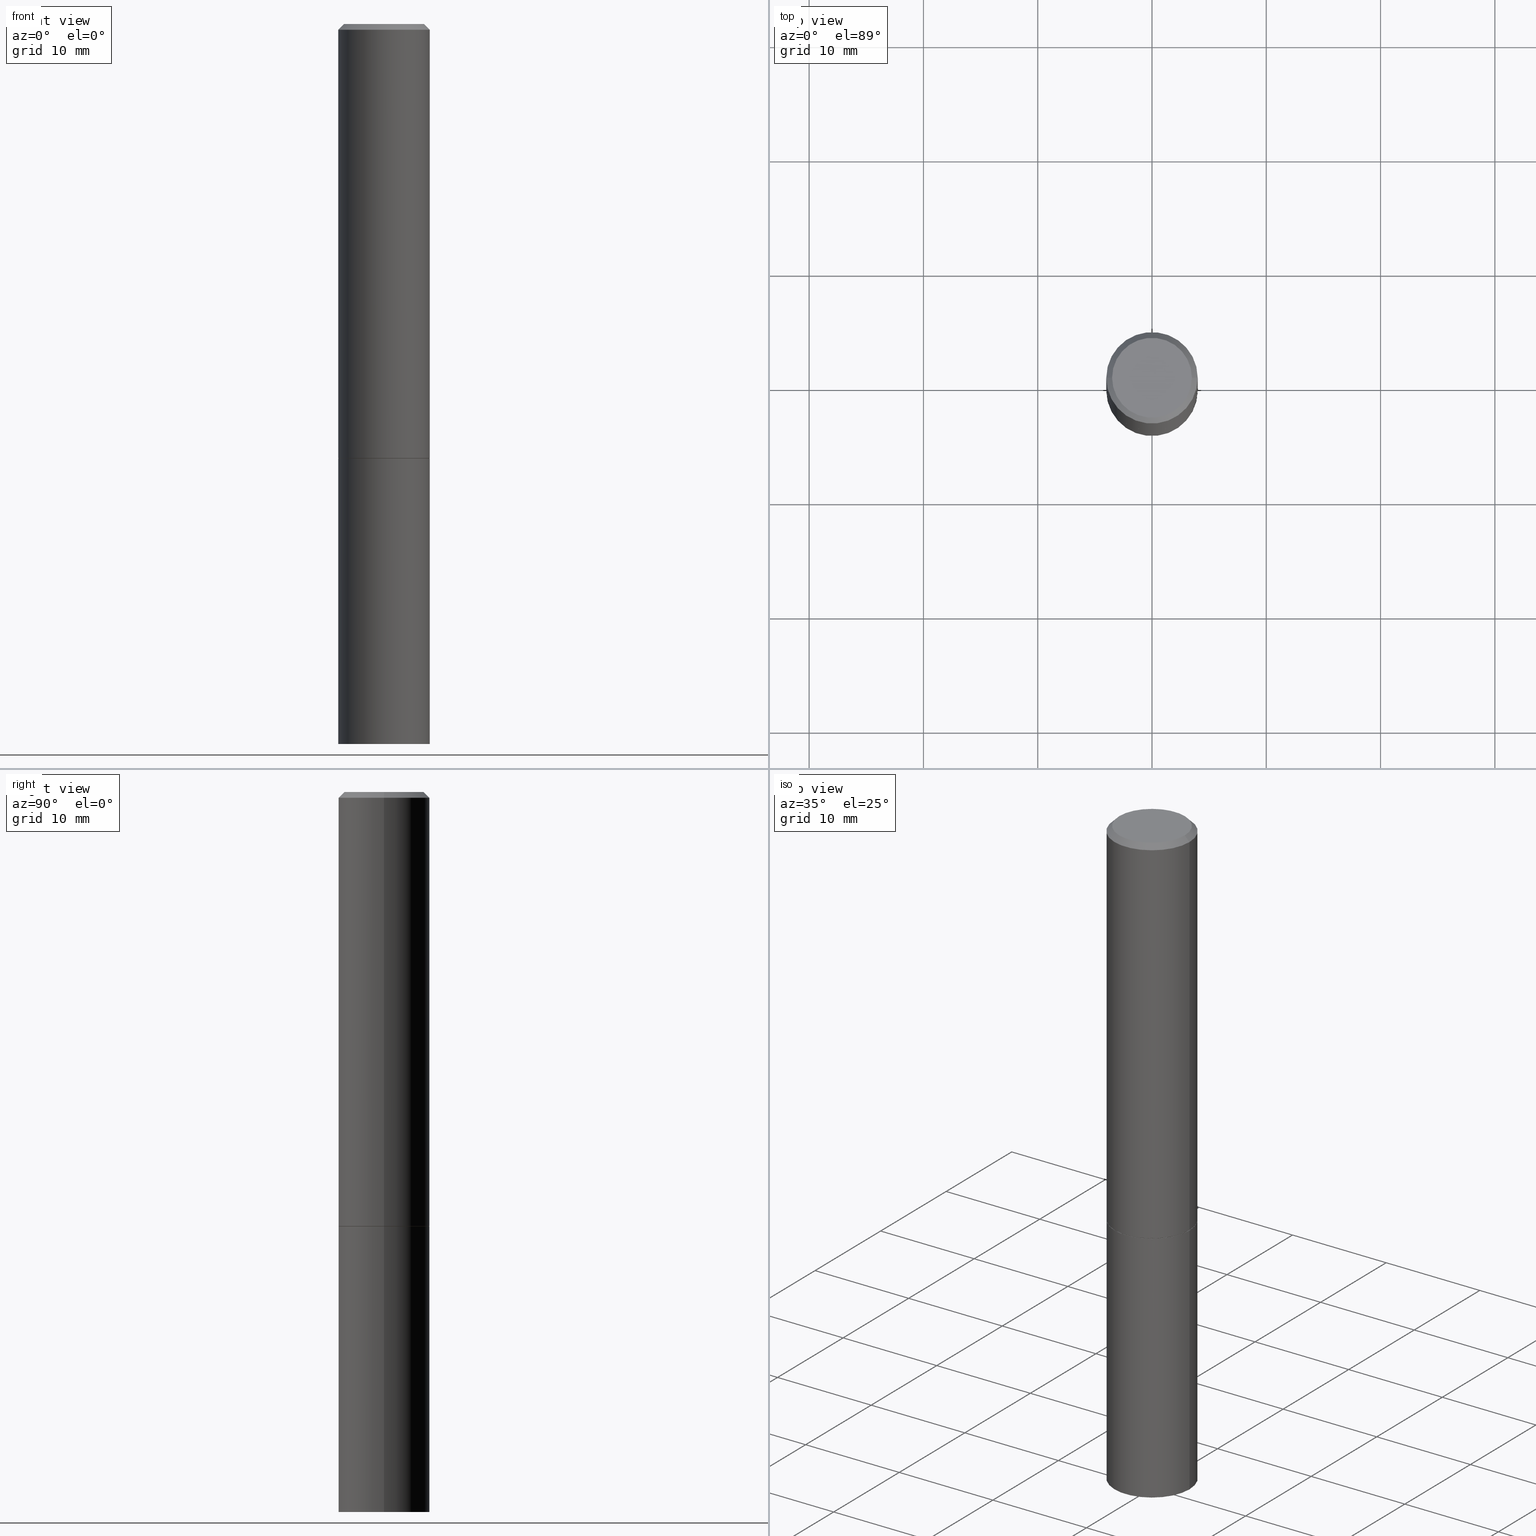
[diagram: canonical four-view strip — front | top / right | iso, engineering-drawing reading convention]
A machine part, canonical four-view strip (front | top / right | iso — engineering-drawing reading convention). The complete STEP part file that produces these views, byte-faithful:
ISO-10303-21;
HEADER;
FILE_DESCRIPTION (( 'STEP AP203' ),
    '1' );
FILE_NAME ('91121.STEP',
    '2024-03-01T03:58:50',
    ( '' ),
    ( '' ),
    'SwSTEP 2.0',
    'SolidWorks 2023',
    '' );
FILE_SCHEMA (( 'CONFIG_CONTROL_DESIGN' ));
ENDSEC;

DATA;
#1 = CARTESIAN_POINT ( 'NONE',  ( 3.658421334052964725E-29, -5.223256082909346148E-15, -1.495999999999999996 ) ) ;
#2 = VERTEX_POINT ( 'NONE', #57 ) ;
#3 = DIRECTION ( 'NONE',  ( 1.000000000000000000, -6.982962677686265922E-15, 4.876176775795935232E-29 ) ) ;
#4 = ORIENTED_EDGE ( 'NONE', *, *, #106, .F. ) ;
#5 = DATE_TIME_ROLE ( 'classification_date' ) ;
#6 = EDGE_CURVE ( 'NONE', #230, #224, #355, .T. ) ;
#7 = VERTEX_POINT ( 'NONE', #11 ) ;
#8 = APPLICATION_CONTEXT ( 'configuration controlled 3d designs of mechanical parts and assemblies' ) ;
#9 = PERSON_AND_ORGANIZATION ( #47, #123 ) ;
#10 = CARTESIAN_POINT ( 'NONE',  ( 3.658421334052964725E-29, -5.223256082909346148E-15, -1.495999999999999996 ) ) ;
#11 = CARTESIAN_POINT ( 'NONE',  ( 0.1574999999999999456, -6.319581223306091410E-15, -1.495000000000000329 ) ) ;
#12 = APPROVAL_ROLE ( '' ) ;
#13 = CC_DESIGN_PERSON_AND_ORGANIZATION_ASSIGNMENT ( #150, #299, ( #117 ) ) ;
#14 = DIRECTION ( 'NONE',  ( 1.000000000000000000, -6.982962677686265922E-15, 4.876176775795935232E-29 ) ) ;
#15 = AXIS2_PLACEMENT_3D ( 'NONE', #153, #69, #189 ) ;
#16 = VECTOR ( 'NONE', #144, 39.37007874015748143 ) ;
#17 = FACE_OUTER_BOUND ( 'NONE', #26, .T. ) ;
#18 = AXIS2_PLACEMENT_3D ( 'NONE', #125, #301, #14 ) ;
#19 = ADVANCED_BREP_SHAPE_REPRESENTATION ( '91121', ( #271, #157, #63 ), #320 ) ;
#20 = EDGE_LOOP ( 'NONE', ( #346, #289, #170, #86 ) ) ;
#21 = CC_DESIGN_DATE_AND_TIME_ASSIGNMENT ( #65, #182, ( #309 ) ) ;
#22 = APPLICATION_CONTEXT ( 'configuration controlled 3d designs of mechanical parts and assemblies' ) ;
#23 = CARTESIAN_POINT ( 'NONE',  ( 4.890937612370281041E-31, -6.982962677686302702E-17, -0.02000000000000003511 ) ) ;
#24 = CARTESIAN_POINT ( 'NONE',  ( 4.890937612370281041E-31, -6.982962677686302702E-17, -0.02000000000000003511 ) ) ;
#25 = CIRCLE ( 'NONE', #334, 0.1565000000000000002 ) ;
#26 = EDGE_LOOP ( 'NONE', ( #250, #336, #200, #149 ) ) ;
#27 = LINE ( 'NONE', #281, #16 ) ;
#28 = ORIENTED_EDGE ( 'NONE', *, *, #162, .F. ) ;
#29 = CARTESIAN_POINT ( 'NONE',  ( -0.1575000000000000011, -5.822483814998842744E-15, -1.496000000000000441 ) ) ;
#30 = EDGE_LOOP ( 'NONE', ( #4, #52, #175, #177 ) ) ;
#31 = CARTESIAN_POINT ( 'NONE',  ( -0.1565000000000000002, -4.105958247096567151E-15, -1.495999999999999996 ) ) ;
#32 = ADVANCED_FACE ( 'NONE', ( #96 ), #227, .T. ) ;
#33 = CIRCLE ( 'NONE', #54, 0.1574999999999997791 ) ;
#34 = ORIENTED_EDGE ( 'NONE', *, *, #340, .F. ) ;
#35 = APPROVAL_DATE_TIME ( #41, #270 ) ;
#36 = ORIENTED_EDGE ( 'NONE', *, *, #298, .F. ) ;
#37 = APPROVAL_ROLE ( '' ) ;
#38 = LINE ( 'NONE', #352, #362 ) ;
#39 = AXIS2_PLACEMENT_3D ( 'NONE', #141, #50, #168 ) ;
#40 = ADVANCED_FACE ( 'NONE', ( #187 ), #327, .T. ) ;
#41 = DATE_AND_TIME ( #288, #306 ) ;
#42 = DIRECTION ( 'NONE',  ( -2.445468806185136597E-29, 3.491481338843145583E-15, 1.000000000000000000 ) ) ;
#43 = APPROVAL_STATUS ( 'not_yet_approved' ) ;
#44 = VECTOR ( 'NONE', #237, 39.37007874015748143 ) ;
#45 = DIRECTION ( 'NONE',  ( 1.000000000000000000, -6.982962677686268288E-15, 0.000000000000000000 ) ) ;
#46 = EDGE_CURVE ( 'NONE', #314, #2, #48, .T. ) ;
#47 = PERSON ( 'UNSPECIFIED', 'UNSPECIFIED', 'UNSPECIFIED', ('UNSPECIFIED'), ('UNSPECIFIED'), ('UNSPECIFIED') ) ;
#48 = CIRCLE ( 'NONE', #62, 0.1565000000000000002 ) ;
#49 = CONICAL_SURFACE ( 'NONE', #356, 0.1565000000000000002, 0.7853981633975336552 ) ;
#50 = DIRECTION ( 'NONE',  ( -2.445468806185136597E-29, 3.491481338843145583E-15, 1.000000000000000000 ) ) ;
#51 = CARTESIAN_POINT ( 'NONE',  ( 0.1575000000000000011, -6.323072704644934417E-15, -1.496000000000000441 ) ) ;
#52 = ORIENTED_EDGE ( 'NONE', *, *, #102, .T. ) ;
#53 = DIRECTION ( 'NONE',  ( 1.000000000000000000, -6.982962677686266711E-15, 0.000000000000000000 ) ) ;
#54 = AXIS2_PLACEMENT_3D ( 'NONE', #24, #56, #197 ) ;
#55 = EDGE_LOOP ( 'NONE', ( #319, #253, #34, #36 ) ) ;
#56 = DIRECTION ( 'NONE',  ( -2.445468806185136597E-29, 3.491481338843145583E-15, 1.000000000000000000 ) ) ;
#57 = CARTESIAN_POINT ( 'NONE',  ( 0.1565000000000000002, -6.316089741967246825E-15, -1.495999999999999996 ) ) ;
#58 = ADVANCED_FACE ( 'NONE', ( #238 ), #263, .T. ) ;
#59 = CARTESIAN_POINT ( 'NONE',  ( 0.000000000000000000, 0.000000000000000000, 0.000000000000000000 ) ) ;
#60 = ORIENTED_EDGE ( 'NONE', *, *, #46, .F. ) ;
#61 = CC_DESIGN_PERSON_AND_ORGANIZATION_ASSIGNMENT ( #322, #66, ( #70 ) ) ;
#62 = AXIS2_PLACEMENT_3D ( 'NONE', #129, #42, #190 ) ;
#63 = AXIS2_PLACEMENT_3D ( 'NONE', #119, #152, #231 ) ;
#64 = ORIENTED_EDGE ( 'NONE', *, *, #106, .T. ) ;
#65 = DATE_AND_TIME ( #295, #294 ) ;
#66 = PERSON_AND_ORGANIZATION_ROLE ( 'classification_officer' ) ;
#67 = DIRECTION ( 'NONE',  ( -2.445468806185136597E-29, 3.491481338843145583E-15, 1.000000000000000000 ) ) ;
#68 = PERSON_AND_ORGANIZATION_ROLE ( 'design_owner' ) ;
#69 = DIRECTION ( 'NONE',  ( -2.445468806185136597E-29, 3.491481338843145583E-15, 1.000000000000000000 ) ) ;
#70 = SECURITY_CLASSIFICATION ( '', '', #326 ) ;
#71 = CALENDAR_DATE ( 2024, 29, 2 ) ;
#72 = ADVANCED_FACE ( 'NONE', ( #212 ), #323, .F. ) ;
#73 = CYLINDRICAL_SURFACE ( 'NONE', #130, 0.1574999999999998901 ) ;
#74 = CC_DESIGN_APPROVAL ( #270, ( #117 ) ) ;
#75 = DIRECTION ( 'NONE',  ( 1.000000000000000000, -6.982962677686266711E-15, 4.876176775795935793E-29 ) ) ;
#76 = LINE ( 'NONE', #243, #274 ) ;
#77 = EDGE_CURVE ( 'NONE', #224, #272, #184, .T. ) ;
#78 = CC_DESIGN_PERSON_AND_ORGANIZATION_ASSIGNMENT ( #239, #211, ( #117 ) ) ;
#79 = DIRECTION ( 'NONE',  ( -2.445468806185136877E-29, 3.491481338843145188E-15, 1.000000000000000000 ) ) ;
#80 = CARTESIAN_POINT ( 'NONE',  ( -0.1574999999999999456, -1.525692305351525222E-15, -1.495000000000000329 ) ) ;
#81 = EDGE_LOOP ( 'NONE', ( #83, #60 ) ) ;
#82 = CARTESIAN_POINT ( 'NONE',  ( 3.658421334052965286E-29, -5.223256082909346937E-15, -1.496000000000000441 ) ) ;
#83 = ORIENTED_EDGE ( 'NONE', *, *, #255, .F. ) ;
#84 = DIRECTION ( 'NONE',  ( 0.7071067811866078578, -2.468850131082888544E-15, 0.7071067811864871766 ) ) ;
#85 = VECTOR ( 'NONE', #79, 39.37007874015748143 ) ;
#86 = ORIENTED_EDGE ( 'NONE', *, *, #102, .F. ) ;
#87 = DIRECTION ( 'NONE',  ( 1.000000000000000000, -6.982962677686267499E-15, 0.000000000000000000 ) ) ;
#88 = ORIENTED_EDGE ( 'NONE', *, *, #162, .T. ) ;
#89 = APPROVAL_STATUS ( 'not_yet_approved' ) ;
#90 = ORIENTED_EDGE ( 'NONE', *, *, #273, .T. ) ;
#91 = AXIS2_PLACEMENT_3D ( 'NONE', #23, #312, #53 ) ;
#92 = DATE_AND_TIME ( #264, #186 ) ;
#93 = CARTESIAN_POINT ( 'NONE',  ( 4.890937612370281041E-31, -6.982962677686302702E-17, -0.02000000000000003511 ) ) ;
#94 = PERSON_AND_ORGANIZATION_ROLE ( 'creator' ) ;
#95 = CC_DESIGN_PERSON_AND_ORGANIZATION_ASSIGNMENT ( #236, #68, ( #252 ) ) ;
#96 = FACE_OUTER_BOUND ( 'NONE', #20, .T. ) ;
#97 = APPROVAL_ROLE ( '' ) ;
#98 = CIRCLE ( 'NONE', #108, 0.1374999999999997891 ) ;
#99 = EDGE_CURVE ( 'NONE', #145, #260, #38, .T. ) ;
#100 = DIRECTION ( 'NONE',  ( -2.445468806185136597E-29, 3.491481338843145583E-15, 1.000000000000000000 ) ) ;
#101 = CC_DESIGN_SECURITY_CLASSIFICATION ( #70, ( #117 ) ) ;
#102 = EDGE_CURVE ( 'NONE', #342, #7, #137, .T. ) ;
#103 = DIRECTION ( 'NONE',  ( 2.438088387897960049E-29, -3.491481338843145188E-15, -1.000000000000000000 ) ) ;
#104 = DIRECTION ( 'NONE',  ( -1.000000000000000000, 6.982962677686265922E-15, -4.876176775795935793E-29 ) ) ;
#105 = DIRECTION ( 'NONE',  ( 1.000000000000000000, -6.982962677686267499E-15, 0.000000000000000000 ) ) ;
#106 = EDGE_CURVE ( 'NONE', #342, #344, #128, .T. ) ;
#107 = AXIS2_PLACEMENT_3D ( 'NONE', #93, #240, #242 ) ;
#108 = AXIS2_PLACEMENT_3D ( 'NONE', #174, #251, #176 ) ;
#109 = DIRECTION ( 'NONE',  ( -1.000000000000000000, 6.982962677686265922E-15, -4.876176775795935793E-29 ) ) ;
#110 = ORIENTED_EDGE ( 'NONE', *, *, #229, .T. ) ;
#111 = DIRECTION ( 'NONE',  ( 1.000000000000000000, -6.982962677686268288E-15, 0.000000000000000000 ) ) ;
#112 = DIRECTION ( 'NONE',  ( -2.445468806185136597E-29, 3.491481338843145583E-15, 1.000000000000000000 ) ) ;
#113 = DIRECTION ( 'NONE',  ( 1.000000000000000000, -6.982962677686266711E-15, 4.876176775795935793E-29 ) ) ;
#114 = ORIENTED_EDGE ( 'NONE', *, *, #6, .F. ) ;
#115 = AXIS2_PLACEMENT_3D ( 'NONE', #357, #103, #104 ) ;
#116 = CARTESIAN_POINT ( 'NONE',  ( -0.1374999999999997891, 9.950721815702913496E-16, 8.537024980193986277E-18 ) ) ;
#117 = PRODUCT_DEFINITION_FORMATION_WITH_SPECIFIED_SOURCE ( 'ANY', '', #252, .NOT_KNOWN. ) ;
#118 = EDGE_LOOP ( 'NONE', ( #181, #142 ) ) ;
#119 = CARTESIAN_POINT ( 'NONE',  ( 0.000000000000000000, 0.000000000000000000, 0.000000000000000000 ) ) ;
#120 = ORIENTED_EDGE ( 'NONE', *, *, #349, .T. ) ;
#121 = APPROVAL_STATUS ( 'not_yet_approved' ) ;
#122 =( CONVERSION_BASED_UNIT ( 'INCH', #266 ) LENGTH_UNIT ( ) NAMED_UNIT ( #297 ) );
#123 = ORGANIZATION ( 'UNSPECIFIED', 'UNSPECIFIED', '' ) ;
#124 = CARTESIAN_POINT ( 'NONE',  ( -0.1575000000000000011, 1.119104808822157801E-15, -7.747322767151475583E-30 ) ) ;
#125 = CARTESIAN_POINT ( 'NONE',  ( 0.000000000000000000, 0.000000000000000000, 0.000000000000000000 ) ) ;
#126 = APPLICATION_PROTOCOL_DEFINITION ( 'international standard', 'config_control_design', 1994, #22 ) ;
#127 = EDGE_CURVE ( 'NONE', #224, #230, #348, .T. ) ;
#128 = LINE ( 'NONE', #292, #136 ) ;
#129 = CARTESIAN_POINT ( 'NONE',  ( 3.658421334052964725E-29, -5.223256082909346148E-15, -1.495999999999999996 ) ) ;
#130 = AXIS2_PLACEMENT_3D ( 'NONE', #304, #100, #75 ) ;
#131 = ORIENTED_EDGE ( 'NONE', *, *, #127, .F. ) ;
#132 = VECTOR ( 'NONE', #276, 39.37007874015748143 ) ;
#133 = CC_DESIGN_DATE_AND_TIME_ASSIGNMENT ( #188, #5, ( #70 ) ) ;
#134 = ADVANCED_FACE ( 'NONE', ( #303 ), #73, .T. ) ;
#135 = PLANE ( 'NONE',  #156 ) ;
#136 = VECTOR ( 'NONE', #214, 39.37007874015748143 ) ;
#137 = CIRCLE ( 'NONE', #305, 0.1574999999999999456 ) ;
#138 = CIRCLE ( 'NONE', #179, 0.1575000000000000011 ) ;
#139 = CARTESIAN_POINT ( 'NONE',  ( 0.1565000000000000002, -6.316089741967246825E-15, -1.495999999999999996 ) ) ;
#140 = CARTESIAN_POINT ( 'NONE',  ( 6.065496279980994755E-29, -8.659921164732655335E-15, -2.480300000000000171 ) ) ;
#141 = CARTESIAN_POINT ( 'NONE',  ( -2.087702828670439639E-46, 2.980686340760894400E-32, 8.537024980200822558E-18 ) ) ;
#142 = ORIENTED_EDGE ( 'NONE', *, *, #183, .T. ) ;
#143 = ADVANCED_FACE ( 'NONE', ( #358 ), #192, .F. ) ;
#144 = DIRECTION ( 'NONE',  ( -0.7071067811866078578, 7.493145998870571886E-15, 0.7071067811864871766 ) ) ;
#145 = VERTEX_POINT ( 'NONE', #193 ) ;
#146 = AXIS2_PLACEMENT_3D ( 'NONE', #296, #324, #267 ) ;
#147 = FACE_OUTER_BOUND ( 'NONE', #315, .T. ) ;
#148 = CIRCLE ( 'NONE', #39, 0.1374999999999997891 ) ;
#149 = ORIENTED_EDGE ( 'NONE', *, *, #183, .F. ) ;
#150 = PERSON_AND_ORGANIZATION ( #47, #123 ) ;
#151 = PRODUCT_DEFINITION_SHAPE ( 'NONE', 'NONE',  #309 ) ;
#152 = DIRECTION ( 'NONE',  ( 0.000000000000000000, 0.000000000000000000, 1.000000000000000000 ) ) ;
#153 = CARTESIAN_POINT ( 'NONE',  ( 3.658421334052964725E-29, -5.223256082909346148E-15, -1.495999999999999996 ) ) ;
#154 =( NAMED_UNIT ( * ) SI_UNIT ( $, .STERADIAN. ) SOLID_ANGLE_UNIT ( ) );
#155 = AXIS2_PLACEMENT_3D ( 'NONE', #164, #269, #217 ) ;
#156 = AXIS2_PLACEMENT_3D ( 'NONE', #247, #361, #109 ) ;
#157 = MANIFOLD_SOLID_BREP ( 'Body-Move/Copy2[2]', #293 ) ;
#158 = DIRECTION ( 'NONE',  ( 0.7071067811865466846, -7.319954787623252890E-15, -0.7071067811865483499 ) ) ;
#159 = PERSON_AND_ORGANIZATION ( #47, #123 ) ;
#160 = DIRECTION ( 'NONE',  ( 1.000000000000000000, -6.982962677686270655E-15, 0.000000000000000000 ) ) ;
#161 = APPROVAL_DATE_TIME ( #207, #360 ) ;
#162 = EDGE_CURVE ( 'NONE', #203, #344, #76, .T. ) ;
#163 = SHAPE_DEFINITION_REPRESENTATION ( #151, #19 ) ;
#164 = CARTESIAN_POINT ( 'NONE',  ( 4.890937612370281041E-31, -6.982962677686302702E-17, -0.02000000000000003511 ) ) ;
#165 = CARTESIAN_POINT ( 'NONE',  ( 1.099816621735647434E-15, 0.1574999999999913136, -2.480300000000001059 ) ) ;
#166 = CIRCLE ( 'NONE', #257, 0.1575000000000000011 ) ;
#167 = FACE_OUTER_BOUND ( 'NONE', #364, .T. ) ;
#168 = DIRECTION ( 'NONE',  ( 1.000000000000000000, -6.982962677686267499E-15, 4.876173381029107889E-29 ) ) ;
#169 = CYLINDRICAL_SURFACE ( 'NONE', #201, 0.1574999999999998901 ) ;
#170 = ORIENTED_EDGE ( 'NONE', *, *, #206, .T. ) ;
#171 =( LENGTH_UNIT ( ) NAMED_UNIT ( * ) SI_UNIT ( $, .METRE. ) );
#172 = DIRECTION ( 'NONE',  ( 1.000000000000000000, -6.982962677686261977E-15, 0.000000000000000000 ) ) ;
#173 = ADVANCED_FACE ( 'NONE', ( #167 ), #330, .T. ) ;
#174 = CARTESIAN_POINT ( 'NONE',  ( -2.087702828670439639E-46, 2.980686340760894400E-32, 8.537024980200822558E-18 ) ) ;
#175 = ORIENTED_EDGE ( 'NONE', *, *, #347, .T. ) ;
#176 = DIRECTION ( 'NONE',  ( 1.000000000000000000, -6.982962677686267499E-15, 4.876173381029107889E-29 ) ) ;
#177 = ORIENTED_EDGE ( 'NONE', *, *, #246, .F. ) ;
#178 =( NAMED_UNIT ( * ) PLANE_ANGLE_UNIT ( ) SI_UNIT ( $, .RADIAN. ) );
#179 = AXIS2_PLACEMENT_3D ( 'NONE', #82, #308, #111 ) ;
#180 = ADVANCED_FACE ( 'NONE', ( #300 ), #325, .T. ) ;
#181 = ORIENTED_EDGE ( 'NONE', *, *, #340, .T. ) ;
#182 = DATE_TIME_ROLE ( 'creation_date' ) ;
#183 = EDGE_CURVE ( 'NONE', #272, #232, #166, .T. ) ;
#184 = LINE ( 'NONE', #124, #44 ) ;
#185 = AXIS2_PLACEMENT_3D ( 'NONE', #10, #234, #262 ) ;
#186 = LOCAL_TIME ( 22, 58, 50.00000000000000000, #261 ) ;
#187 = FACE_OUTER_BOUND ( 'NONE', #55, .T. ) ;
#188 = DATE_AND_TIME ( #353, #241 ) ;
#189 = DIRECTION ( 'NONE',  ( 1.000000000000000000, -6.982962677686267499E-15, 0.000000000000000000 ) ) ;
#190 = DIRECTION ( 'NONE',  ( 1.000000000000000000, -6.982962677686267499E-15, 0.000000000000000000 ) ) ;
#191 = DIRECTION ( 'NONE',  ( -2.445468806185136597E-29, 3.491481338843145583E-15, 1.000000000000000000 ) ) ;
#192 = PLANE ( 'NONE',  #115 ) ;
#193 = CARTESIAN_POINT ( 'NONE',  ( 0.1374999999999997891, -1.046838268059730914E-15, 8.537024980207840646E-18 ) ) ;
#194 = ADVANCED_FACE ( 'NONE', ( #17 ), #278, .T. ) ;
#195 = AXIS2_PLACEMENT_3D ( 'NONE', #165, #219, #331 ) ;
#196 = APPROVAL_PERSON_ORGANIZATION ( #291, #265, #37 ) ;
#197 = DIRECTION ( 'NONE',  ( 1.000000000000000000, -6.982962677686266711E-15, 0.000000000000000000 ) ) ;
#198 = ORIENTED_EDGE ( 'NONE', *, *, #246, .T. ) ;
#199 = CARTESIAN_POINT ( 'NONE',  ( 0.1574999999999998901, -1.099816621735586297E-15, 7.679978421878593829E-30 ) ) ;
#200 = ORIENTED_EDGE ( 'NONE', *, *, #298, .T. ) ;
#201 = AXIS2_PLACEMENT_3D ( 'NONE', #59, #285, #113 ) ;
#202 = DIRECTION ( 'NONE',  ( -2.445468806185136597E-29, 3.491481338843145583E-15, 1.000000000000000000 ) ) ;
#203 = VERTEX_POINT ( 'NONE', #116 ) ;
#204 = DIRECTION ( 'NONE',  ( 1.000000000000000000, -6.982962677686270655E-15, 0.000000000000000000 ) ) ;
#205 = ORIENTED_EDGE ( 'NONE', *, *, #99, .T. ) ;
#206 = EDGE_CURVE ( 'NONE', #2, #7, #310, .T. ) ;
#207 = DATE_AND_TIME ( #71, #268 ) ;
#208 = ORIENTED_EDGE ( 'NONE', *, *, #213, .T. ) ;
#209 = AXIS2_PLACEMENT_3D ( 'NONE', #140, #112, #172 ) ;
#210 = MECHANICAL_CONTEXT ( 'NONE', #22, 'mechanical' ) ;
#211 = PERSON_AND_ORGANIZATION_ROLE ( 'creator' ) ;
#212 = FACE_OUTER_BOUND ( 'NONE', #81, .T. ) ;
#213 = EDGE_CURVE ( 'NONE', #203, #145, #148, .T. ) ;
#214 = DIRECTION ( 'NONE',  ( -2.445468806185136877E-29, 3.491481338843145188E-15, 1.000000000000000000 ) ) ;
#215 = COORDINATED_UNIVERSAL_TIME_OFFSET ( 5, 0, .BEHIND. ) ;
#216 = EDGE_CURVE ( 'NONE', #145, #203, #98, .T. ) ;
#217 = DIRECTION ( 'NONE',  ( -1.000000000000000000, 6.982962677686266711E-15, 0.000000000000000000 ) ) ;
#218 = DIRECTION ( 'NONE',  ( -0.7071067811865466846, 2.468850131082247989E-15, -0.7071067811865483499 ) ) ;
#219 = DIRECTION ( 'NONE',  ( 2.438088387897960049E-29, -3.491481338843145188E-15, -1.000000000000000000 ) ) ;
#220 = DESIGN_CONTEXT ( 'detailed design', #8, 'design' ) ;
#221 = DIRECTION ( 'NONE',  ( -2.445468806185136597E-29, 3.491481338843145583E-15, 1.000000000000000000 ) ) ;
#222 = ORIENTED_EDGE ( 'NONE', *, *, #229, .F. ) ;
#223 = CARTESIAN_POINT ( 'NONE',  ( 3.655975865246779683E-29, -5.219764601570503930E-15, -1.495000000000000329 ) ) ;
#224 = VERTEX_POINT ( 'NONE', #283 ) ;
#225 = FACE_OUTER_BOUND ( 'NONE', #256, .T. ) ;
#226 = ORIENTED_EDGE ( 'NONE', *, *, #99, .F. ) ;
#227 = CONICAL_SURFACE ( 'NONE', #15, 0.1565000000000000002, 0.7853981633975336552 ) ;
#228 = CARTESIAN_POINT ( 'NONE',  ( 0.1574999999999997791, -1.150358061425877894E-15, -0.02000000000000003511 ) ) ;
#229 = EDGE_CURVE ( 'NONE', #7, #342, #302, .T. ) ;
#230 = VERTEX_POINT ( 'NONE', #339 ) ;
#231 = DIRECTION ( 'NONE',  ( 1.000000000000000000, 0.000000000000000000, 0.000000000000000000 ) ) ;
#232 = VERTEX_POINT ( 'NONE', #51 ) ;
#233 = CC_DESIGN_PERSON_AND_ORGANIZATION_ASSIGNMENT ( #321, #94, ( #309 ) ) ;
#234 = DIRECTION ( 'NONE',  ( -2.438088387897960049E-29, 3.491481338843145188E-15, 1.000000000000000000 ) ) ;
#235 = VECTOR ( 'NONE', #84, 39.37007874015748143 ) ;
#236 = PERSON_AND_ORGANIZATION ( #47, #123 ) ;
#237 = DIRECTION ( 'NONE',  ( -2.445468806185136877E-29, 3.491481338843145188E-15, 1.000000000000000000 ) ) ;
#238 = FACE_OUTER_BOUND ( 'NONE', #282, .T. ) ;
#239 = PERSON_AND_ORGANIZATION ( #47, #123 ) ;
#240 = DIRECTION ( 'NONE',  ( 2.445468806185136597E-29, -3.491481338843145583E-15, -1.000000000000000000 ) ) ;
#241 = LOCAL_TIME ( 22, 58, 50.00000000000000000, #259 ) ;
#242 = DIRECTION ( 'NONE',  ( -1.000000000000000000, 6.982962677686266711E-15, 0.000000000000000000 ) ) ;
#243 = CARTESIAN_POINT ( 'NONE',  ( -0.1574999999999997791, 1.029986994958722407E-15, -0.02000000000000003511 ) ) ;
#244 = PRODUCT_RELATED_PRODUCT_CATEGORY ( 'detail', '', ( #252 ) ) ;
#245 = ORIENTED_EDGE ( 'NONE', *, *, #213, .F. ) ;
#246 = EDGE_CURVE ( 'NONE', #344, #260, #33, .T. ) ;
#247 = CARTESIAN_POINT ( 'NONE',  ( 9.601573681818600950E-16, 0.1374999999999997891, -4.758101716008313957E-16 ) ) ;
#248 = ORIENTED_EDGE ( 'NONE', *, *, #347, .F. ) ;
#249 = DIRECTION ( 'NONE',  ( -2.445468806185136597E-29, 3.491481338843145583E-15, 1.000000000000000000 ) ) ;
#250 = ORIENTED_EDGE ( 'NONE', *, *, #77, .F. ) ;
#251 = DIRECTION ( 'NONE',  ( -2.445468806185136597E-29, 3.491481338843145583E-15, 1.000000000000000000 ) ) ;
#252 = PRODUCT ( '91121', '91121', '', ( #210 ) ) ;
#253 = ORIENTED_EDGE ( 'NONE', *, *, #77, .T. ) ;
#254 = DIRECTION ( 'NONE',  ( -2.445468806185136597E-29, 3.491481338843145583E-15, 1.000000000000000000 ) ) ;
#255 = EDGE_CURVE ( 'NONE', #2, #314, #25, .T. ) ;
#256 = EDGE_LOOP ( 'NONE', ( #208, #366 ) ) ;
#257 = AXIS2_PLACEMENT_3D ( 'NONE', #328, #191, #45 ) ;
#258 = AXIS2_PLACEMENT_3D ( 'NONE', #223, #202, #204 ) ;
#259 = COORDINATED_UNIVERSAL_TIME_OFFSET ( 5, 0, .BEHIND. ) ;
#260 = VERTEX_POINT ( 'NONE', #228 ) ;
#261 = COORDINATED_UNIVERSAL_TIME_OFFSET ( 5, 0, .BEHIND. ) ;
#262 = DIRECTION ( 'NONE',  ( 1.000000000000000000, -6.982962677686265922E-15, 4.876176775795935793E-29 ) ) ;
#263 = CONICAL_SURFACE ( 'NONE', #107, 0.1574999999999997791, 0.7853981633974471688 ) ;
#264 = CALENDAR_DATE ( 2024, 29, 2 ) ;
#265 = APPROVAL ( #43, 'UNSPECIFIED' ) ;
#266 = LENGTH_MEASURE_WITH_UNIT ( LENGTH_MEASURE( 0.02539999999999999897 ), #171 );
#267 = DIRECTION ( 'NONE',  ( 1.000000000000000000, -6.982962677686261977E-15, 0.000000000000000000 ) ) ;
#268 = LOCAL_TIME ( 22, 58, 50.00000000000000000, #215 ) ;
#269 = DIRECTION ( 'NONE',  ( 2.445468806185136597E-29, -3.491481338843145583E-15, -1.000000000000000000 ) ) ;
#270 = APPROVAL ( #89, 'UNSPECIFIED' ) ;
#271 = MANIFOLD_SOLID_BREP ( 'Body-Move/Copy2[1]', #329 ) ;
#272 = VERTEX_POINT ( 'NONE', #29 ) ;
#273 = EDGE_CURVE ( 'NONE', #314, #342, #27, .T. ) ;
#274 = VECTOR ( 'NONE', #218, 39.37007874015748143 ) ;
#275 = AXIS2_PLACEMENT_3D ( 'NONE', #335, #221, #3 ) ;
#276 = DIRECTION ( 'NONE',  ( -2.445468806185136877E-29, 3.491481338843145188E-15, 1.000000000000000000 ) ) ;
#277 = UNCERTAINTY_MEASURE_WITH_UNIT (LENGTH_MEASURE( 1.000000000000000082E-05 ), #122, 'distance_accuracy_value', 'NONE');
#278 = CYLINDRICAL_SURFACE ( 'NONE', #275, 0.1575000000000000011 ) ;
#279 = APPROVAL_PERSON_ORGANIZATION ( #9, #360, #97 ) ;
#280 = ORIENTED_EDGE ( 'NONE', *, *, #255, .T. ) ;
#281 = CARTESIAN_POINT ( 'NONE',  ( -0.1565000000000000002, -4.111256701444789553E-15, -1.495999999999999996 ) ) ;
#282 = EDGE_LOOP ( 'NONE', ( #226, #245, #88, #198 ) ) ;
#283 = CARTESIAN_POINT ( 'NONE',  ( -0.1575000000000000011, -5.822483814998842744E-15, -2.480300000000000171 ) ) ;
#284 = ORIENTED_EDGE ( 'NONE', *, *, #349, .F. ) ;
#285 = DIRECTION ( 'NONE',  ( -2.445468806185136597E-29, 3.491481338843145583E-15, 1.000000000000000000 ) ) ;
#286 = ORIENTED_EDGE ( 'NONE', *, *, #216, .F. ) ;
#287 = CIRCLE ( 'NONE', #91, 0.1574999999999997791 ) ;
#288 = CALENDAR_DATE ( 2024, 29, 2 ) ;
#289 = ORIENTED_EDGE ( 'NONE', *, *, #46, .T. ) ;
#290 = APPROVAL_DATE_TIME ( #92, #265 ) ;
#291 = PERSON_AND_ORGANIZATION ( #47, #123 ) ;
#292 = CARTESIAN_POINT ( 'NONE',  ( -0.1574999999999998901, 1.119104808822157012E-15, -7.747322767151471379E-30 ) ) ;
#293 = CLOSED_SHELL ( 'NONE', ( #332, #307, #180, #58, #134, #32, #72, #354 ) ) ;
#294 = LOCAL_TIME ( 22, 58, 50.00000000000000000, #318 ) ;
#295 = CALENDAR_DATE ( 2024, 29, 2 ) ;
#296 = CARTESIAN_POINT ( 'NONE',  ( 6.065496279980994755E-29, -8.659921164732655335E-15, -2.480300000000000171 ) ) ;
#297 = DIMENSIONAL_EXPONENTS ( 1.000000000000000000, 0.000000000000000000, 0.000000000000000000, 0.000000000000000000, 0.000000000000000000, 0.000000000000000000, 0.000000000000000000 ) ;
#298 = EDGE_CURVE ( 'NONE', #230, #232, #333, .T. ) ;
#299 = PERSON_AND_ORGANIZATION_ROLE ( 'design_supplier' ) ;
#300 = FACE_OUTER_BOUND ( 'NONE', #338, .T. ) ;
#301 = DIRECTION ( 'NONE',  ( -2.445468806185136597E-29, 3.491481338843145583E-15, 1.000000000000000000 ) ) ;
#302 = CIRCLE ( 'NONE', #258, 0.1574999999999999456 ) ;
#303 = FACE_OUTER_BOUND ( 'NONE', #30, .T. ) ;
#304 = CARTESIAN_POINT ( 'NONE',  ( 0.000000000000000000, 0.000000000000000000, 0.000000000000000000 ) ) ;
#305 = AXIS2_PLACEMENT_3D ( 'NONE', #350, #67, #160 ) ;
#306 = LOCAL_TIME ( 22, 58, 50.00000000000000000, #351 ) ;
#307 = ADVANCED_FACE ( 'NONE', ( #316 ), #169, .T. ) ;
#308 = DIRECTION ( 'NONE',  ( -2.445468806185136597E-29, 3.491481338843145583E-15, 1.000000000000000000 ) ) ;
#309 = PRODUCT_DEFINITION ( 'UNKNOWN', '', #117, #220 ) ;
#310 = LINE ( 'NONE', #139, #235 ) ;
#311 = EDGE_LOOP ( 'NONE', ( #110, #64, #284, #248 ) ) ;
#312 = DIRECTION ( 'NONE',  ( -2.445468806185136597E-29, 3.491481338843145583E-15, 1.000000000000000000 ) ) ;
#313 = CC_DESIGN_APPROVAL ( #265, ( #309 ) ) ;
#314 = VERTEX_POINT ( 'NONE', #31 ) ;
#315 = EDGE_LOOP ( 'NONE', ( #280, #90, #222, #317 ) ) ;
#316 = FACE_OUTER_BOUND ( 'NONE', #311, .T. ) ;
#317 = ORIENTED_EDGE ( 'NONE', *, *, #206, .F. ) ;
#318 = COORDINATED_UNIVERSAL_TIME_OFFSET ( 5, 0, .BEHIND. ) ;
#319 = ORIENTED_EDGE ( 'NONE', *, *, #6, .T. ) ;
#320 =( GEOMETRIC_REPRESENTATION_CONTEXT ( 3 ) GLOBAL_UNCERTAINTY_ASSIGNED_CONTEXT ( ( #277 ) ) GLOBAL_UNIT_ASSIGNED_CONTEXT ( ( #122, #178, #154 ) ) REPRESENTATION_CONTEXT ( 'NONE', 'WORKASPACE' ) );
#321 = PERSON_AND_ORGANIZATION ( #47, #123 ) ;
#322 = PERSON_AND_ORGANIZATION ( #47, #123 ) ;
#323 = PLANE ( 'NONE',  #185 ) ;
#324 = DIRECTION ( 'NONE',  ( -2.445468806185136597E-29, 3.491481338843145583E-15, 1.000000000000000000 ) ) ;
#325 = CONICAL_SURFACE ( 'NONE', #155, 0.1574999999999997791, 0.7853981633974471688 ) ;
#326 = SECURITY_CLASSIFICATION_LEVEL ( 'unclassified' ) ;
#327 = CYLINDRICAL_SURFACE ( 'NONE', #18, 0.1575000000000000011 ) ;
#328 = CARTESIAN_POINT ( 'NONE',  ( 3.658421334052965286E-29, -5.223256082909346937E-15, -1.496000000000000441 ) ) ;
#329 = CLOSED_SHELL ( 'NONE', ( #40, #173, #143, #194 ) ) ;
#330 = PLANE ( 'NONE',  #195 ) ;
#331 = DIRECTION ( 'NONE',  ( -1.000000000000000000, 6.982962677686265922E-15, -4.876176775795935793E-29 ) ) ;
#332 = ADVANCED_FACE ( 'NONE', ( #147 ), #49, .T. ) ;
#333 = LINE ( 'NONE', #343, #85 ) ;
#334 = AXIS2_PLACEMENT_3D ( 'NONE', #1, #254, #87 ) ;
#335 = CARTESIAN_POINT ( 'NONE',  ( 0.000000000000000000, 0.000000000000000000, 0.000000000000000000 ) ) ;
#336 = ORIENTED_EDGE ( 'NONE', *, *, #127, .T. ) ;
#337 = LINE ( 'NONE', #199, #132 ) ;
#338 = EDGE_LOOP ( 'NONE', ( #286, #205, #120, #28 ) ) ;
#339 = CARTESIAN_POINT ( 'NONE',  ( 0.1575000000000000011, -9.759737786468242027E-15, -2.480300000000000171 ) ) ;
#340 = EDGE_CURVE ( 'NONE', #232, #272, #138, .T. ) ;
#341 = APPROVAL_PERSON_ORGANIZATION ( #159, #270, #12 ) ;
#342 = VERTEX_POINT ( 'NONE', #80 ) ;
#343 = CARTESIAN_POINT ( 'NONE',  ( 0.1575000000000000011, -1.099816621735586889E-15, 7.679978421878598033E-30 ) ) ;
#344 = VERTEX_POINT ( 'NONE', #365 ) ;
#345 = APPLICATION_PROTOCOL_DEFINITION ( 'international standard', 'config_control_design', 1994, #8 ) ;
#346 = ORIENTED_EDGE ( 'NONE', *, *, #273, .F. ) ;
#347 = EDGE_CURVE ( 'NONE', #7, #260, #337, .T. ) ;
#348 = CIRCLE ( 'NONE', #146, 0.1575000000000000011 ) ;
#349 = EDGE_CURVE ( 'NONE', #260, #344, #287, .T. ) ;
#350 = CARTESIAN_POINT ( 'NONE',  ( 3.655975865246779683E-29, -5.219764601570503930E-15, -1.495000000000000329 ) ) ;
#351 = COORDINATED_UNIVERSAL_TIME_OFFSET ( 5, 0, .BEHIND. ) ;
#352 = CARTESIAN_POINT ( 'NONE',  ( 0.1574999999999997791, -1.150358061425877894E-15, -0.02000000000000003511 ) ) ;
#353 = CALENDAR_DATE ( 2024, 29, 2 ) ;
#354 = ADVANCED_FACE ( 'NONE', ( #225 ), #135, .F. ) ;
#355 = CIRCLE ( 'NONE', #209, 0.1575000000000000011 ) ;
#356 = AXIS2_PLACEMENT_3D ( 'NONE', #359, #249, #105 ) ;
#357 = CARTESIAN_POINT ( 'NONE',  ( 1.099816621735623373E-15, 0.1574999999999947553, -1.496000000000000885 ) ) ;
#358 = FACE_OUTER_BOUND ( 'NONE', #118, .T. ) ;
#359 = CARTESIAN_POINT ( 'NONE',  ( 3.658421334052964725E-29, -5.223256082909346148E-15, -1.495999999999999996 ) ) ;
#360 = APPROVAL ( #121, 'UNSPECIFIED' ) ;
#361 = DIRECTION ( 'NONE',  ( 2.438088387897960049E-29, -3.491481338843145188E-15, -1.000000000000000000 ) ) ;
#362 = VECTOR ( 'NONE', #158, 39.37007874015748143 ) ;
#363 = CC_DESIGN_APPROVAL ( #360, ( #70 ) ) ;
#364 = EDGE_LOOP ( 'NONE', ( #114, #131 ) ) ;
#365 = CARTESIAN_POINT ( 'NONE',  ( -0.1574999999999997791, 1.029986994958722407E-15, -0.02000000000000003511 ) ) ;
#366 = ORIENTED_EDGE ( 'NONE', *, *, #216, .T. ) ;
ENDSEC;
END-ISO-10303-21;
